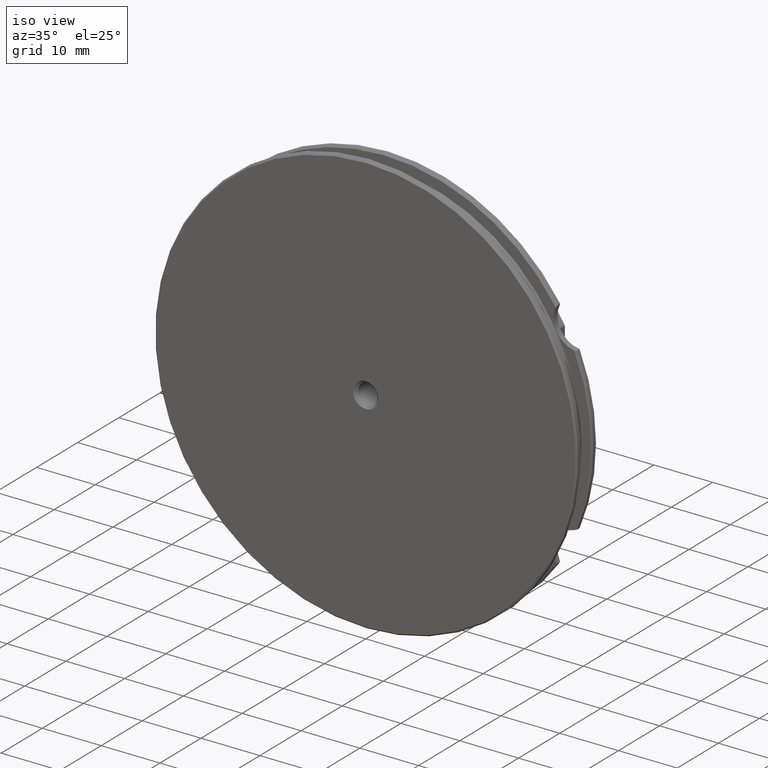
[diagram: clean part render]
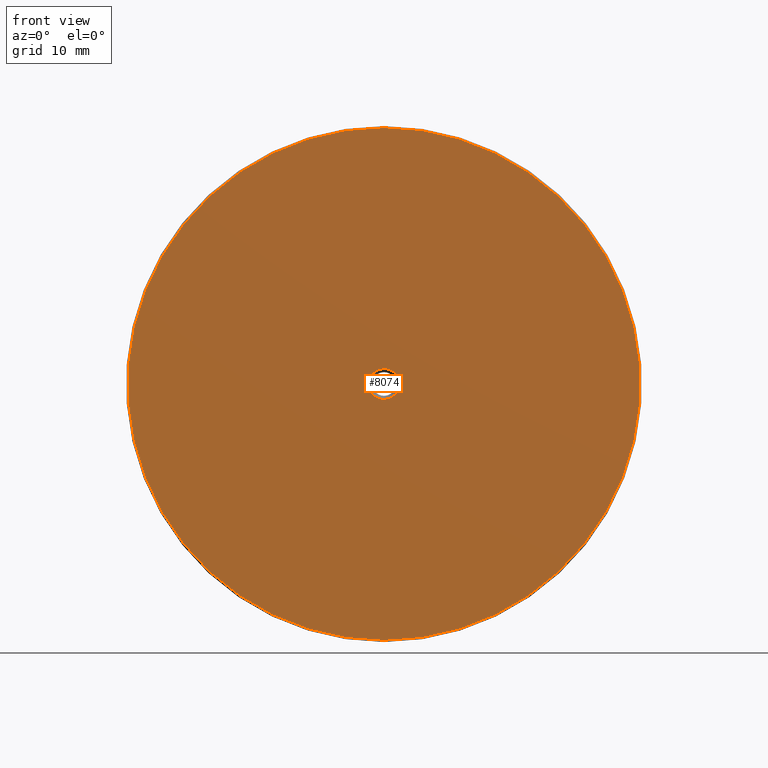
[diagram: tour spotlight — one face highlighted and labeled with its STEP entity id]
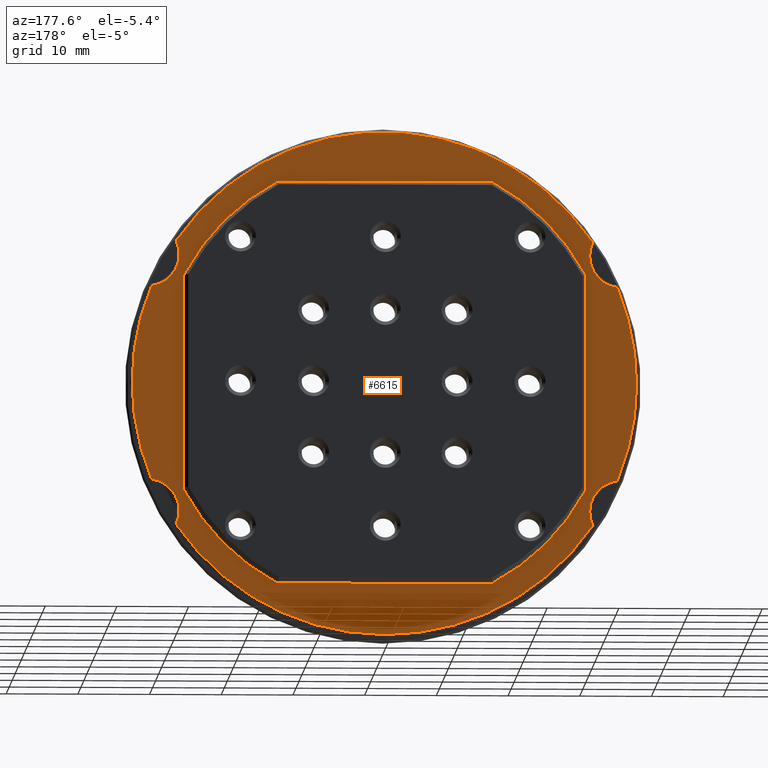
[diagram: tour spotlight — one face highlighted and labeled with its STEP entity id]
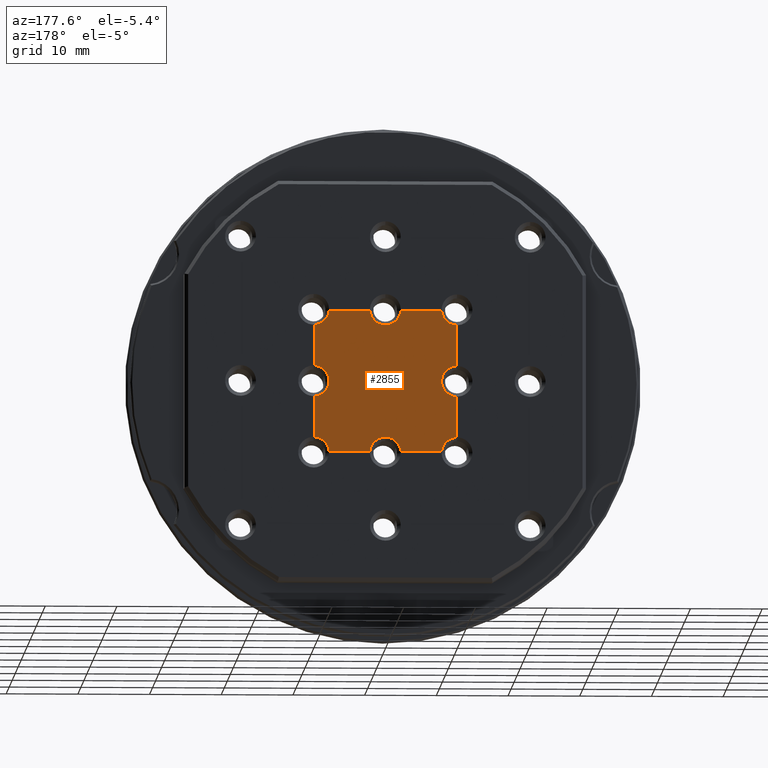
[diagram: tour spotlight — one face highlighted and labeled with its STEP entity id]
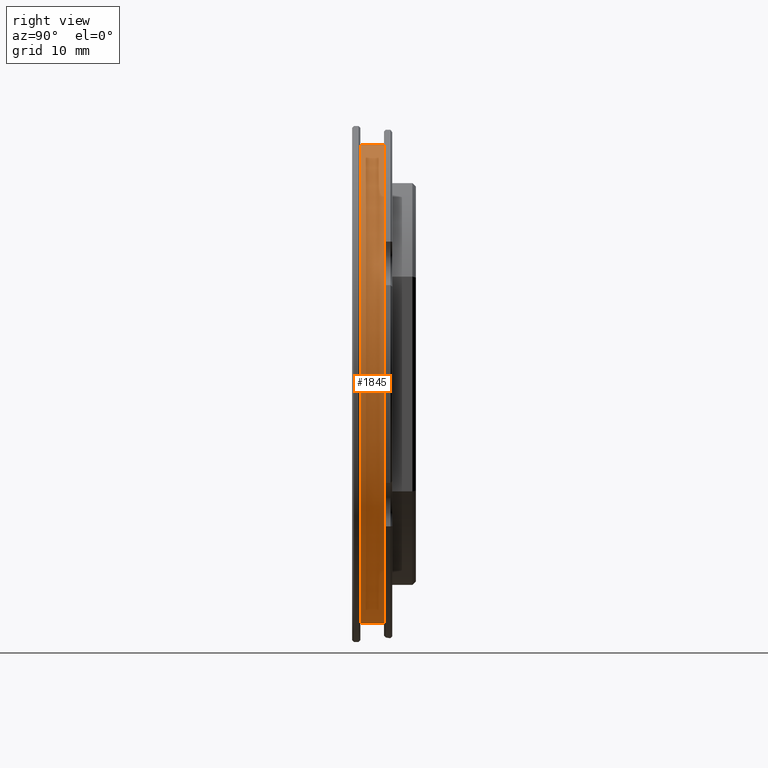
[diagram: tour spotlight — one face highlighted and labeled with its STEP entity id]
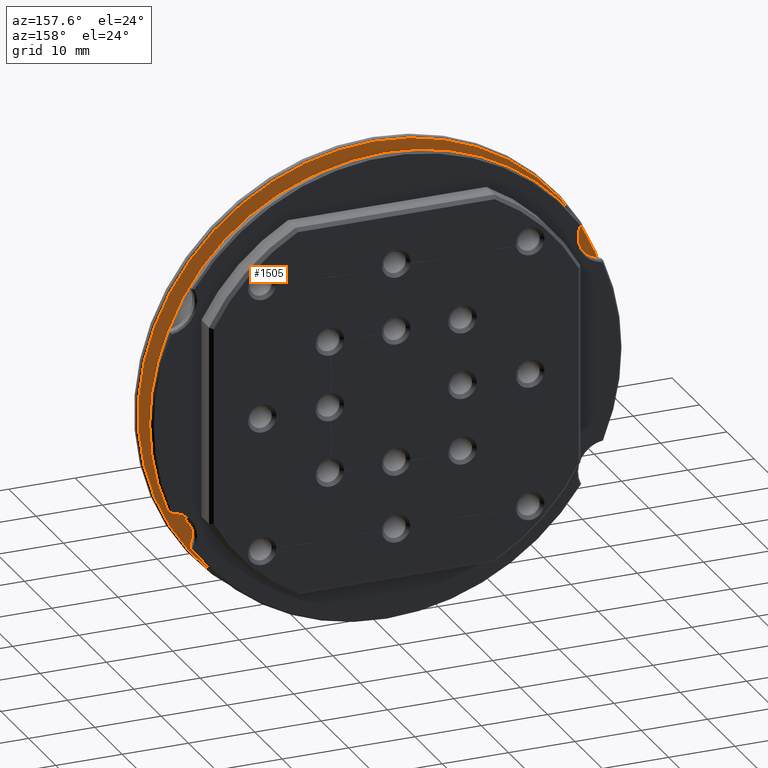
[diagram: tour spotlight — one face highlighted and labeled with its STEP entity id]
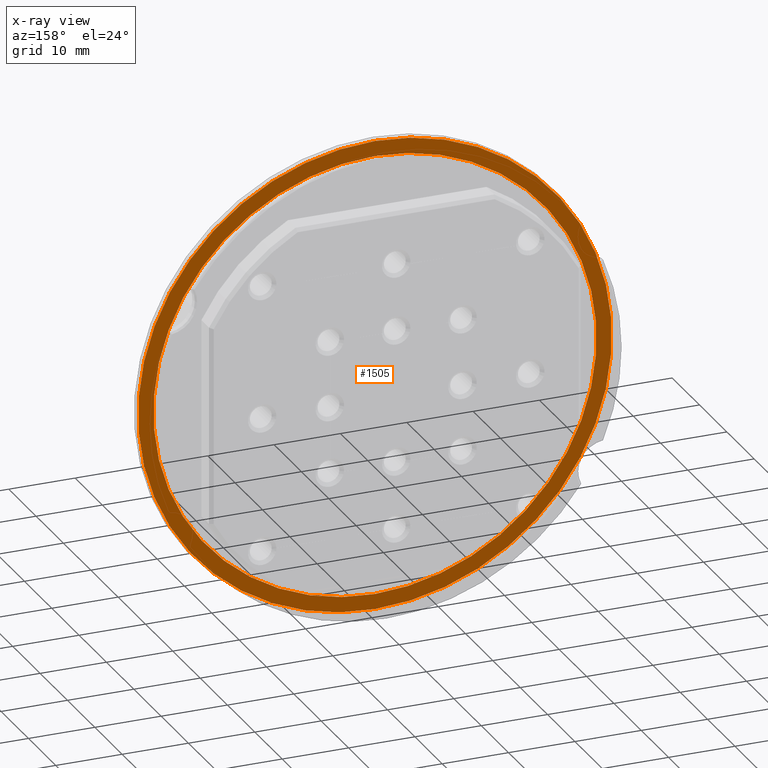
[diagram: x-ray of the same camera — body ghosted, this tour face saturated]
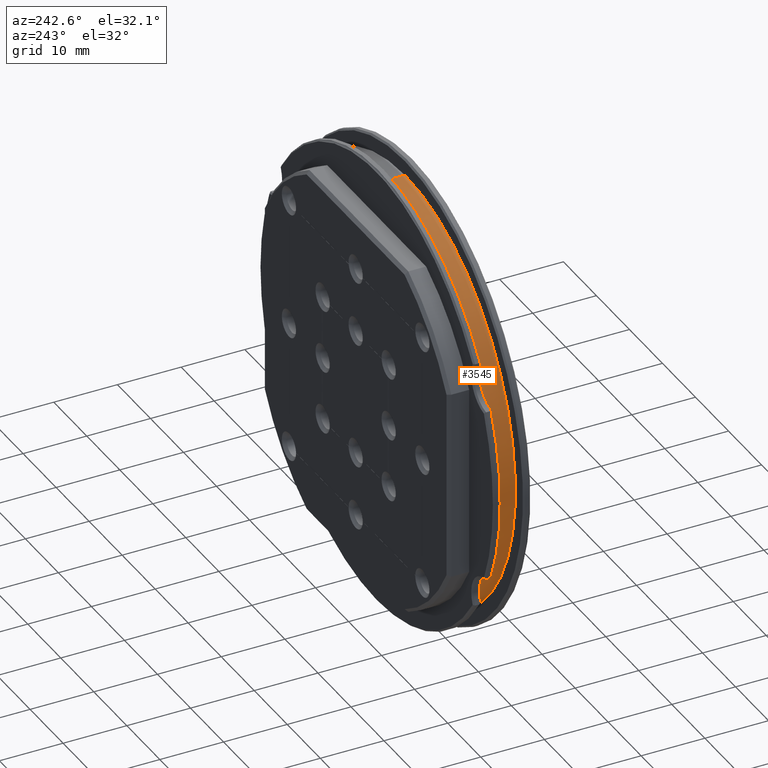
[diagram: tour spotlight — one face highlighted and labeled with its STEP entity id]
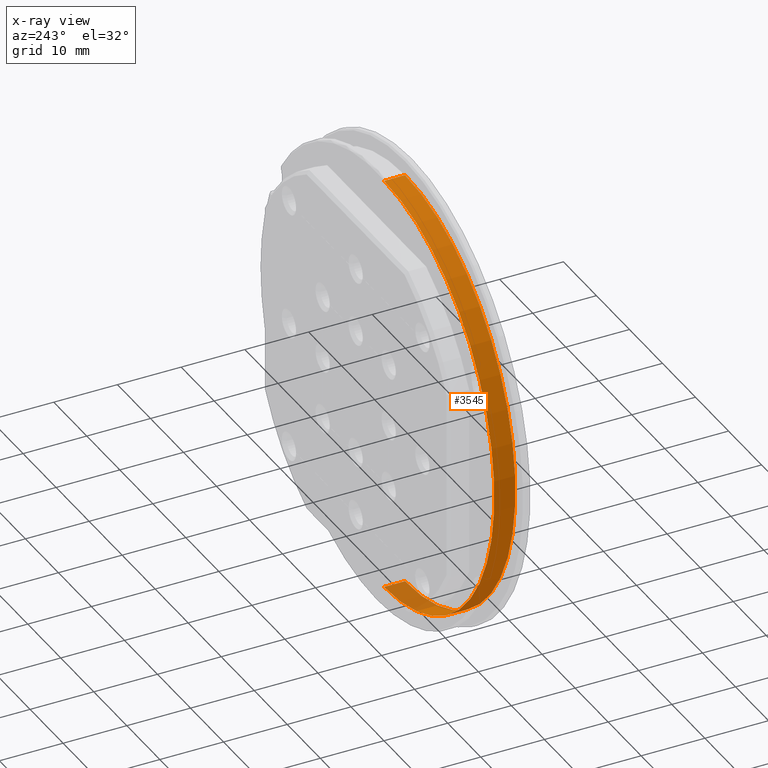
[diagram: x-ray of the same camera — body ghosted, this tour face saturated]
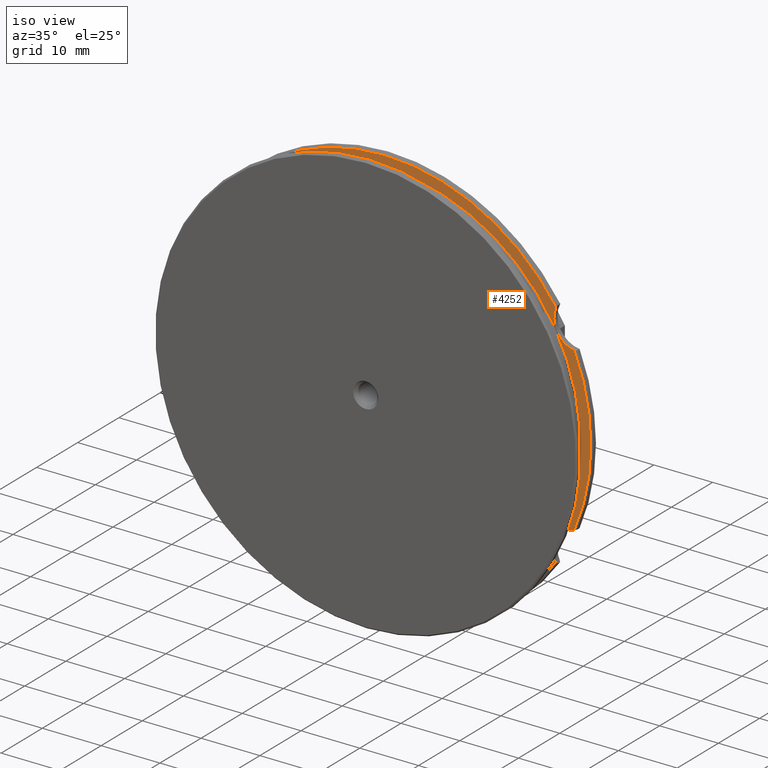
[diagram: tour spotlight — one face highlighted and labeled with its STEP entity id]
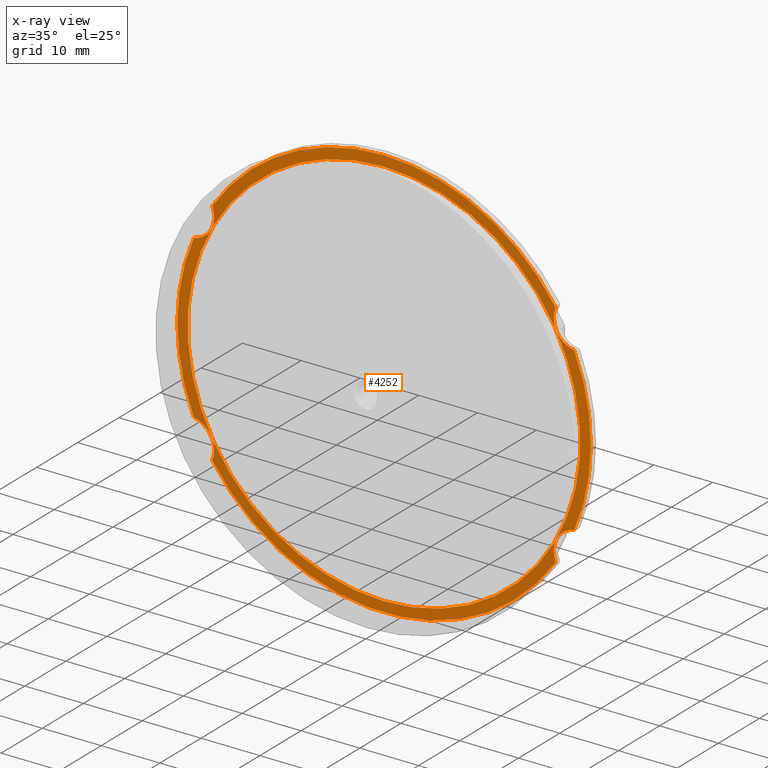
[diagram: x-ray of the same camera — body ghosted, this tour face saturated]
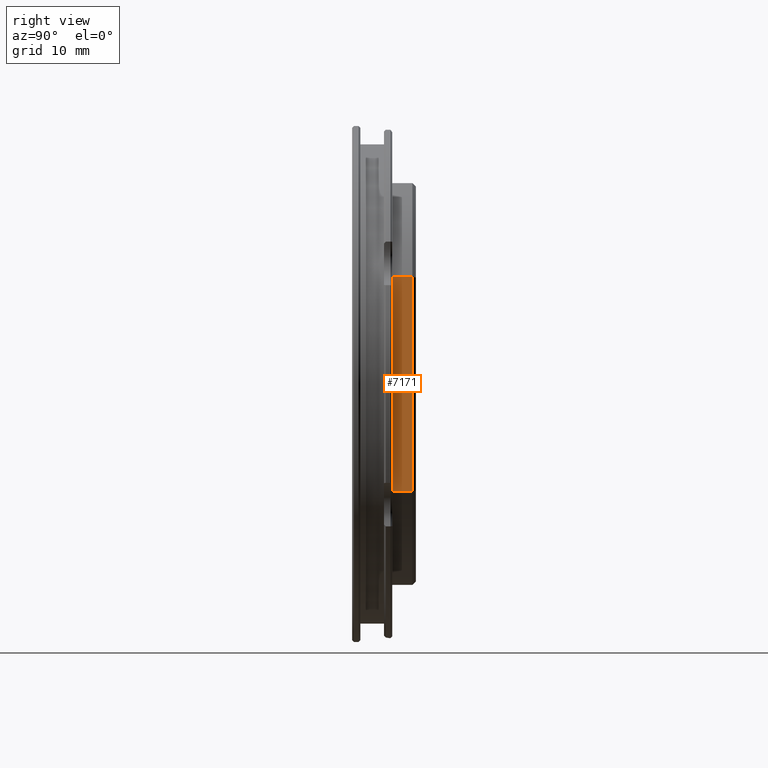
[diagram: tour spotlight — one face highlighted and labeled with its STEP entity id]
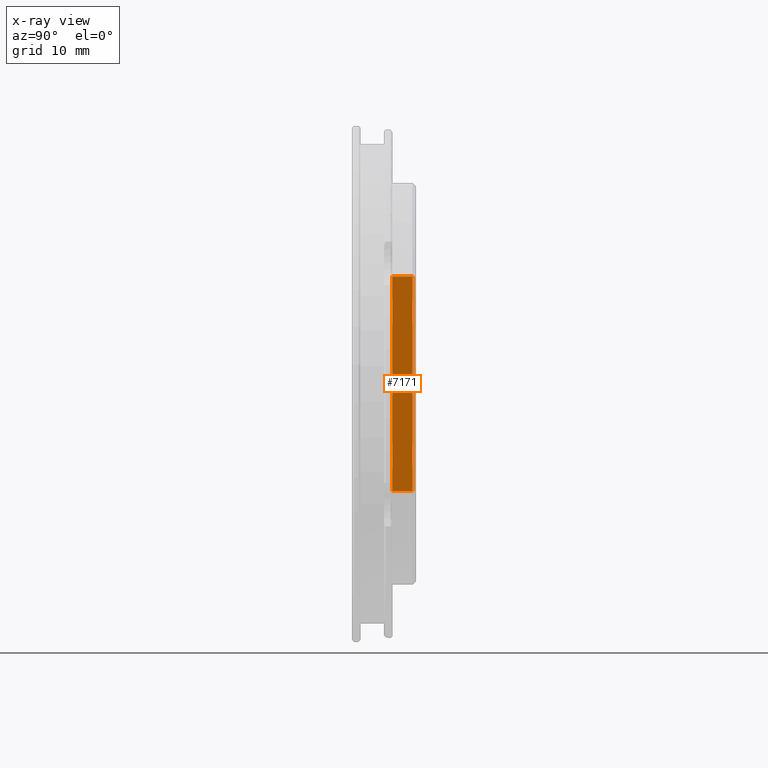
[diagram: x-ray of the same camera — body ghosted, this tour face saturated]
A machine part: a face-by-face anatomy tour. The part has 170 B-rep faces; the first image is the clean iso view, then the 8 largest visible faces are spotlighted one at a time (largest first), each with its STEP entity span.

Face 1 — front view, entity #8074. In plain terms, the highlighted planar face has unit normal (0, 1, 0).
Definition (entity closure, byte-faithful):
#121 = EDGE_CURVE ( 'NONE', #347, #5603, #5796, .T. ) ;
#295 = DIRECTION ( 'NONE',  ( 0.000000000000000000, 0.000000000000000000, -1.000000000000000000 ) ) ;
#347 = VERTEX_POINT ( 'NONE', #3080 ) ;
#484 = ORIENTED_EDGE ( 'NONE', *, *, #2888, .T. ) ;
#529 = ORIENTED_EDGE ( 'NONE', *, *, #121, .F. ) ;
#1024 = AXIS2_PLACEMENT_3D ( 'NONE', #1788, #2491, #3167 ) ;
#1518 = CARTESIAN_POINT ( 'NONE',  ( 0.000000000000000000, 0.000000000000000000, 35.69999999999999574 ) ) ;
#1524 = AXIS2_PLACEMENT_3D ( 'NONE', #7430, #2328, #6777 ) ;
#1625 = VERTEX_POINT ( 'NONE', #1518 ) ;
#1737 = CIRCLE ( 'NONE', #6123, 2.149999999999999911 ) ;
#1788 = CARTESIAN_POINT ( 'NONE',  ( 0.000000000000000000, 0.000000000000000000, 0.000000000000000000 ) ) ;
#1923 = EDGE_CURVE ( 'NONE', #7697, #1625, #5832, .T. ) ;
#2166 = PLANE ( 'NONE',  #1524 ) ;
#2328 = DIRECTION ( 'NONE',  ( 0.000000000000000000, 1.000000000000000000, 0.000000000000000000 ) ) ;
#2491 = DIRECTION ( 'NONE',  ( -0.000000000000000000, -1.000000000000000000, -0.000000000000000000 ) ) ;
#2725 = CIRCLE ( 'NONE', #1024, 35.69999999999999574 ) ;
#2888 = EDGE_CURVE ( 'NONE', #1625, #7697, #2725, .T. ) ;
#2977 = FACE_BOUND ( 'NONE', #4315, .T. ) ;
#3079 = FACE_OUTER_BOUND ( 'NONE', #4529, .T. ) ;
#3080 = CARTESIAN_POINT ( 'NONE',  ( 2.632990618166809235E-16, 0.000000000000000000, 2.149999999999999911 ) ) ;
#3167 = DIRECTION ( 'NONE',  ( 0.000000000000000000, 0.000000000000000000, 1.000000000000000000 ) ) ;
#3399 = AXIS2_PLACEMENT_3D ( 'NONE', #3812, #3873, #7685 ) ;
#3812 = CARTESIAN_POINT ( 'NONE',  ( 0.000000000000000000, 0.000000000000000000, 0.000000000000000000 ) ) ;
#3873 = DIRECTION ( 'NONE',  ( -0.000000000000000000, -1.000000000000000000, -0.000000000000000000 ) ) ;
#4315 = EDGE_LOOP ( 'NONE', ( #7285, #529 ) ) ;
#4473 = CARTESIAN_POINT ( 'NONE',  ( 0.000000000000000000, 0.000000000000000000, -2.149999999999999911 ) ) ;
#4529 = EDGE_LOOP ( 'NONE', ( #484, #7143 ) ) ;
#4641 = DIRECTION ( 'NONE',  ( -0.000000000000000000, -1.000000000000000000, -0.000000000000000000 ) ) ;
#4692 = CARTESIAN_POINT ( 'NONE',  ( 0.000000000000000000, 0.000000000000000000, 0.000000000000000000 ) ) ;
#5105 = EDGE_CURVE ( 'NONE', #5603, #347, #1737, .T. ) ;
#5281 = CARTESIAN_POINT ( 'NONE',  ( 4.387297157945392678E-15, 0.000000000000000000, -35.69999999999999574 ) ) ;
#5603 = VERTEX_POINT ( 'NONE', #4473 ) ;
#5796 = CIRCLE ( 'NONE', #6825, 2.149999999999999911 ) ;
#5832 = CIRCLE ( 'NONE', #3399, 35.69999999999999574 ) ;
#6123 = AXIS2_PLACEMENT_3D ( 'NONE', #7505, #6937, #8136 ) ;
#6777 = DIRECTION ( 'NONE',  ( 0.000000000000000000, -0.000000000000000000, 1.000000000000000000 ) ) ;
#6825 = AXIS2_PLACEMENT_3D ( 'NONE', #4692, #4641, #295 ) ;
#6937 = DIRECTION ( 'NONE',  ( -0.000000000000000000, -1.000000000000000000, -0.000000000000000000 ) ) ;
#7143 = ORIENTED_EDGE ( 'NONE', *, *, #1923, .T. ) ;
#7285 = ORIENTED_EDGE ( 'NONE', *, *, #5105, .F. ) ;
#7430 = CARTESIAN_POINT ( 'NONE',  ( 0.000000000000000000, 0.000000000000000000, 0.000000000000000000 ) ) ;
#7505 = CARTESIAN_POINT ( 'NONE',  ( 0.000000000000000000, 0.000000000000000000, 0.000000000000000000 ) ) ;
#7685 = DIRECTION ( 'NONE',  ( 0.000000000000000000, 0.000000000000000000, 1.000000000000000000 ) ) ;
#7697 = VERTEX_POINT ( 'NONE', #5281 ) ;
#8074 = ADVANCED_FACE ( 'NONE', ( #3079, #2977 ), #2166, .F. ) ;
#8136 = DIRECTION ( 'NONE',  ( 0.000000000000000000, 0.000000000000000000, -1.000000000000000000 ) ) ;

Face 2 — auxiliary view, entity #6615. In plain terms, the highlighted planar face has unit normal (-0, 1, 0).
Definition (entity closure, byte-faithful):
#27 = CIRCLE ( 'NONE', #6774, 35.17999999999999972 ) ;
#54 = DIRECTION ( 'NONE',  ( -0.000000000000000000, 1.000000000000000000, 0.000000000000000000 ) ) ;
#57 = VERTEX_POINT ( 'NONE', #4588 ) ;
#76 = ORIENTED_EDGE ( 'NONE', *, *, #2952, .T. ) ;
#153 = ORIENTED_EDGE ( 'NONE', *, *, #336, .T. ) ;
#195 = CARTESIAN_POINT ( 'NONE',  ( 28.00000000000001066, 5.599999999999994316, -14.96871737992268336 ) ) ;
#196 = VERTEX_POINT ( 'NONE', #6133 ) ;
#234 = EDGE_CURVE ( 'NONE', #7467, #5144, #4483, .T. ) ;
#262 = FACE_OUTER_BOUND ( 'NONE', #4496, .T. ) ;
#269 = CIRCLE ( 'NONE', #1539, 4.414999999999992042 ) ;
#284 = DIRECTION ( 'NONE',  ( 0.000000000000000000, -1.000000000000000000, -0.000000000000000000 ) ) ;
#302 = AXIS2_PLACEMENT_3D ( 'NONE', #7309, #6703, #3496 ) ;
#336 = EDGE_CURVE ( 'NONE', #57, #5211, #27, .T. ) ;
#432 = EDGE_CURVE ( 'NONE', #5211, #4010, #3089, .T. ) ;
#469 = CARTESIAN_POINT ( 'NONE',  ( 0.000000000000000000, 5.599999999999999645, 0.000000000000000000 ) ) ;
#517 = CARTESIAN_POINT ( 'NONE',  ( 0.000000000000000000, 5.599999999999999645, 0.000000000000000000 ) ) ;
#577 = EDGE_CURVE ( 'NONE', #6545, #731, #1306, .T. ) ;
#645 = CIRCLE ( 'NONE', #7714, 31.75000000000000000 ) ;
#718 = DIRECTION ( 'NONE',  ( 0.000000000000000000, 1.000000000000000000, 0.000000000000000000 ) ) ;
#731 = VERTEX_POINT ( 'NONE', #4200 ) ;
#736 = DIRECTION ( 'NONE',  ( 0.000000000000000000, 0.000000000000000000, 1.000000000000000000 ) ) ;
#741 = CARTESIAN_POINT ( 'NONE',  ( -14.96871737992268869, 5.599999999999999645, 28.00000000000001066 ) ) ;
#858 = DIRECTION ( 'NONE',  ( 0.000000000000000000, 0.000000000000000000, 1.000000000000000000 ) ) ;
#868 = CARTESIAN_POINT ( 'NONE',  ( -29.06538625800019204, 5.599999999999999645, -19.82008379581816016 ) ) ;
#872 = ORIENTED_EDGE ( 'NONE', *, *, #7330, .T. ) ;
#1035 = LINE ( 'NONE', #6933, #2023 ) ;
#1073 = ORIENTED_EDGE ( 'NONE', *, *, #2876, .T. ) ;
#1125 = ORIENTED_EDGE ( 'NONE', *, *, #4151, .T. ) ;
#1141 = CARTESIAN_POINT ( 'NONE',  ( 0.000000000000000000, 5.599999999999999645, 0.000000000000000000 ) ) ;
#1146 = CIRCLE ( 'NONE', #3760, 4.414999999999986713 ) ;
#1147 = VERTEX_POINT ( 'NONE', #7429 ) ;
#1165 = DIRECTION ( 'NONE',  ( 0.000000000000000000, -1.000000000000000000, -0.000000000000000000 ) ) ;
#1208 = DIRECTION ( 'NONE',  ( 0.000000000000000000, 0.000000000000000000, -1.000000000000000000 ) ) ;
#1245 = VERTEX_POINT ( 'NONE', #7459 ) ;
#1306 = CIRCLE ( 'NONE', #6526, 35.17999999999999972 ) ;
#1324 = CARTESIAN_POINT ( 'NONE',  ( 0.000000000000000000, 5.599999999999999645, -35.17999999999999972 ) ) ;
#1337 = CIRCLE ( 'NONE', #7813, 31.75000000000000000 ) ;
#1377 = ORIENTED_EDGE ( 'NONE', *, *, #1711, .T. ) ;
#1380 = DIRECTION ( 'NONE',  ( 0.000000000000000000, 0.000000000000000000, 1.000000000000000000 ) ) ;
#1381 = EDGE_CURVE ( 'NONE', #5676, #1147, #6469, .T. ) ;
#1521 = DIRECTION ( 'NONE',  ( -0.000000000000000000, 1.000000000000000000, 0.000000000000000000 ) ) ;
#1539 = AXIS2_PLACEMENT_3D ( 'NONE', #5462, #284, #7315 ) ;
#1563 = DIRECTION ( 'NONE',  ( 0.000000000000000000, -1.000000000000000000, -0.000000000000000000 ) ) ;
#1589 = CARTESIAN_POINT ( 'NONE',  ( 33.04999999999999005, 5.599999999999999645, 17.91874786362039984 ) ) ;
#1590 = DIRECTION ( 'NONE',  ( 0.000000000000000000, -1.000000000000000000, -0.000000000000000000 ) ) ;
#1711 = EDGE_CURVE ( 'NONE', #731, #196, #269, .T. ) ;
#1756 = CIRCLE ( 'NONE', #2805, 4.414999999999992042 ) ;
#1763 = ORIENTED_EDGE ( 'NONE', *, *, #577, .T. ) ;
#1781 = DIRECTION ( 'NONE',  ( 0.000000000000000000, 0.000000000000000000, 1.000000000000000000 ) ) ;
#1823 = AXIS2_PLACEMENT_3D ( 'NONE', #3285, #718, #1380 ) ;
#1932 = AXIS2_PLACEMENT_3D ( 'NONE', #5405, #3497, #4801 ) ;
#2023 = VECTOR ( 'NONE', #1208, 1000.000000000000000 ) ;
#2096 = CARTESIAN_POINT ( 'NONE',  ( 29.06538625800019560, 5.599999999999999645, 19.82008379581816371 ) ) ;
#2118 = CIRCLE ( 'NONE', #5883, 35.17999999999999972 ) ;
#2246 = ORIENTED_EDGE ( 'NONE', *, *, #3307, .F. ) ;
#2249 = CARTESIAN_POINT ( 'NONE',  ( 28.00000000000001066, 5.599999999999994316, 28.00000000000000355 ) ) ;
#2384 = ORIENTED_EDGE ( 'NONE', *, *, #4991, .T. ) ;
#2421 = AXIS2_PLACEMENT_3D ( 'NONE', #1589, #1563, #6028 ) ;
#2539 = DIRECTION ( 'NONE',  ( 0.000000000000000000, 0.000000000000000000, 1.000000000000000000 ) ) ;
#2571 = EDGE_CURVE ( 'NONE', #4845, #57, #1146, .T. ) ;
#2572 = CARTESIAN_POINT ( 'NONE',  ( -32.46911057487578489, 5.599999999999999645, -13.54212902303365595 ) ) ;
#2705 = VECTOR ( 'NONE', #5444, 1000.000000000000000 ) ;
#2805 = AXIS2_PLACEMENT_3D ( 'NONE', #3703, #1165, #6893 ) ;
#2876 = EDGE_CURVE ( 'NONE', #6563, #1147, #1035, .T. ) ;
#2885 = EDGE_CURVE ( 'NONE', #6563, #5144, #1337, .T. ) ;
#2952 = EDGE_CURVE ( 'NONE', #5316, #4845, #2118, .T. ) ;
#2981 = ORIENTED_EDGE ( 'NONE', *, *, #7074, .T. ) ;
#3015 = VERTEX_POINT ( 'NONE', #195 ) ;
#3017 = DIRECTION ( 'NONE',  ( 0.000000000000000000, -0.000000000000000000, 1.000000000000000000 ) ) ;
#3081 = VECTOR ( 'NONE', #3017, 1000.000000000000000 ) ;
#3089 = CIRCLE ( 'NONE', #5502, 35.17999999999999972 ) ;
#3153 = CARTESIAN_POINT ( 'NONE',  ( 14.96871737992269580, 5.599999999999994316, 28.00000000000000355 ) ) ;
#3198 = CARTESIAN_POINT ( 'NONE',  ( 0.000000000000000000, 5.599999999999999645, 0.000000000000000000 ) ) ;
#3268 = DIRECTION ( 'NONE',  ( 0.000000000000000000, 0.000000000000000000, 1.000000000000000000 ) ) ;
#3285 = CARTESIAN_POINT ( 'NONE',  ( 0.000000000000000000, 5.599999999999999645, 0.000000000000000000 ) ) ;
#3307 = EDGE_CURVE ( 'NONE', #3015, #1245, #4389, .T. ) ;
#3373 = CARTESIAN_POINT ( 'NONE',  ( 32.46911057487577779, 5.599999999999999645, 13.54212902303366839 ) ) ;
#3496 = DIRECTION ( 'NONE',  ( 0.000000000000000000, 0.000000000000000000, 1.000000000000000000 ) ) ;
#3497 = DIRECTION ( 'NONE',  ( -0.000000000000000000, 1.000000000000000000, 0.000000000000000000 ) ) ;
#3518 = EDGE_CURVE ( 'NONE', #4337, #5316, #7849, .T. ) ;
#3703 = CARTESIAN_POINT ( 'NONE',  ( -33.04999999999999005, 5.599999999999999645, -17.91874786362039274 ) ) ;
#3760 = AXIS2_PLACEMENT_3D ( 'NONE', #4057, #1590, #4726 ) ;
#3902 = CARTESIAN_POINT ( 'NONE',  ( -14.96871737992272422, 5.599999999999994316, -27.99999999999998934 ) ) ;
#3978 = VECTOR ( 'NONE', #5475, 1000.000000000000000 ) ;
#4010 = VERTEX_POINT ( 'NONE', #868 ) ;
#4057 = CARTESIAN_POINT ( 'NONE',  ( 33.04999999999999005, 5.599999999999999645, -17.91874786362039984 ) ) ;
#4091 = CARTESIAN_POINT ( 'NONE',  ( 0.000000000000000000, 5.599999999999999645, 0.000000000000000000 ) ) ;
#4151 = EDGE_CURVE ( 'NONE', #4010, #6545, #1756, .T. ) ;
#4195 = DIRECTION ( 'NONE',  ( 0.000000000000000000, 1.000000000000000000, 0.000000000000000000 ) ) ;
#4200 = CARTESIAN_POINT ( 'NONE',  ( -32.46911057487577779, 5.599999999999999645, 13.54212902303364707 ) ) ;
#4229 = CARTESIAN_POINT ( 'NONE',  ( 28.00000000000001066, 5.599999999999994316, 28.00000000000000355 ) ) ;
#4337 = VERTEX_POINT ( 'NONE', #2096 ) ;
#4389 = CIRCLE ( 'NONE', #1823, 31.75000000000000000 ) ;
#4483 = LINE ( 'NONE', #2249, #3978 ) ;
#4496 = EDGE_LOOP ( 'NONE', ( #1763, #1377, #2981, #6026, #76, #7705, #153, #5776, #1125 ) ) ;
#4572 = AXIS2_PLACEMENT_3D ( 'NONE', #5196, #6483, #3268 ) ;
#4588 = CARTESIAN_POINT ( 'NONE',  ( 29.06538625800020625, 5.599999999999999645, -19.82008379581817081 ) ) ;
#4726 = DIRECTION ( 'NONE',  ( 0.000000000000000000, 0.000000000000000000, 1.000000000000000000 ) ) ;
#4738 = CARTESIAN_POINT ( 'NONE',  ( 28.00000000000001066, 5.599999999999994316, -27.99999999999999645 ) ) ;
#4769 = LINE ( 'NONE', #4738, #2705 ) ;
#4801 = DIRECTION ( 'NONE',  ( 0.000000000000000000, -0.000000000000000000, 1.000000000000000000 ) ) ;
#4815 = ORIENTED_EDGE ( 'NONE', *, *, #234, .T. ) ;
#4845 = VERTEX_POINT ( 'NONE', #7059 ) ;
#4944 = DIRECTION ( 'NONE',  ( 0.000000000000000000, 1.000000000000000000, 0.000000000000000000 ) ) ;
#4991 = EDGE_CURVE ( 'NONE', #3015, #5963, #5585, .T. ) ;
#5144 = VERTEX_POINT ( 'NONE', #741 ) ;
#5196 = CARTESIAN_POINT ( 'NONE',  ( 0.000000000000000000, 5.599999999999999645, 0.000000000000000000 ) ) ;
#5211 = VERTEX_POINT ( 'NONE', #1324 ) ;
#5316 = VERTEX_POINT ( 'NONE', #3373 ) ;
#5358 = CARTESIAN_POINT ( 'NONE',  ( -27.99999999999998934, 5.599999999999994316, 14.96871737992272422 ) ) ;
#5405 = CARTESIAN_POINT ( 'NONE',  ( 0.000000000000000000, 5.599999999999999645, 0.000000000000000000 ) ) ;
#5444 = DIRECTION ( 'NONE',  ( 1.000000000000000000, 0.000000000000000000, -1.239088197126290817E-16 ) ) ;
#5462 = CARTESIAN_POINT ( 'NONE',  ( -33.04999999999999005, 5.599999999999999645, 17.91874786362039274 ) ) ;
#5475 = DIRECTION ( 'NONE',  ( -1.000000000000000000, -0.000000000000000000, 1.239088197126290817E-16 ) ) ;
#5502 = AXIS2_PLACEMENT_3D ( 'NONE', #6488, #6543, #5933 ) ;
#5585 = LINE ( 'NONE', #4229, #3081 ) ;
#5595 = DIRECTION ( 'NONE',  ( -0.000000000000000000, 1.000000000000000000, 0.000000000000000000 ) ) ;
#5676 = VERTEX_POINT ( 'NONE', #3902 ) ;
#5776 = ORIENTED_EDGE ( 'NONE', *, *, #432, .T. ) ;
#5883 = AXIS2_PLACEMENT_3D ( 'NONE', #3198, #54, #736 ) ;
#5933 = DIRECTION ( 'NONE',  ( 0.000000000000000000, 0.000000000000000000, 1.000000000000000000 ) ) ;
#5963 = VERTEX_POINT ( 'NONE', #7484 ) ;
#6026 = ORIENTED_EDGE ( 'NONE', *, *, #3518, .T. ) ;
#6028 = DIRECTION ( 'NONE',  ( 0.000000000000000000, 0.000000000000000000, 1.000000000000000000 ) ) ;
#6133 = CARTESIAN_POINT ( 'NONE',  ( -29.06538625800019204, 5.599999999999999645, 19.82008379581816371 ) ) ;
#6252 = EDGE_CURVE ( 'NONE', #7467, #5963, #645, .T. ) ;
#6469 = CIRCLE ( 'NONE', #4572, 31.75000000000000000 ) ;
#6483 = DIRECTION ( 'NONE',  ( 0.000000000000000000, 1.000000000000000000, 0.000000000000000000 ) ) ;
#6488 = CARTESIAN_POINT ( 'NONE',  ( 0.000000000000000000, 5.599999999999999645, 0.000000000000000000 ) ) ;
#6526 = AXIS2_PLACEMENT_3D ( 'NONE', #4091, #1521, #858 ) ;
#6543 = DIRECTION ( 'NONE',  ( -0.000000000000000000, 1.000000000000000000, 0.000000000000000000 ) ) ;
#6545 = VERTEX_POINT ( 'NONE', #2572 ) ;
#6563 = VERTEX_POINT ( 'NONE', #5358 ) ;
#6615 = ADVANCED_FACE ( 'NONE', ( #262, #6815 ), #7254, .T. ) ;
#6703 = DIRECTION ( 'NONE',  ( -0.000000000000000000, 1.000000000000000000, 0.000000000000000000 ) ) ;
#6759 = ORIENTED_EDGE ( 'NONE', *, *, #2885, .F. ) ;
#6767 = DIRECTION ( 'NONE',  ( 0.000000000000000000, 0.000000000000000000, 1.000000000000000000 ) ) ;
#6774 = AXIS2_PLACEMENT_3D ( 'NONE', #1141, #5595, #1781 ) ;
#6815 = FACE_BOUND ( 'NONE', #6826, .T. ) ;
#6826 = EDGE_LOOP ( 'NONE', ( #6925, #4815, #6759, #1073, #7763, #872, #2246, #2384 ) ) ;
#6893 = DIRECTION ( 'NONE',  ( 0.000000000000000000, 0.000000000000000000, 1.000000000000000000 ) ) ;
#6925 = ORIENTED_EDGE ( 'NONE', *, *, #6252, .F. ) ;
#6933 = CARTESIAN_POINT ( 'NONE',  ( -27.99999999999998934, 5.599999999999994316, 28.00000000000001066 ) ) ;
#7059 = CARTESIAN_POINT ( 'NONE',  ( 32.46911057487577068, 5.599999999999999645, -13.54212902303366128 ) ) ;
#7074 = EDGE_CURVE ( 'NONE', #196, #4337, #7805, .T. ) ;
#7254 = PLANE ( 'NONE',  #1932 ) ;
#7309 = CARTESIAN_POINT ( 'NONE',  ( 0.000000000000000000, 5.599999999999999645, 0.000000000000000000 ) ) ;
#7315 = DIRECTION ( 'NONE',  ( 0.000000000000000000, 0.000000000000000000, 1.000000000000000000 ) ) ;
#7330 = EDGE_CURVE ( 'NONE', #5676, #1245, #4769, .T. ) ;
#7429 = CARTESIAN_POINT ( 'NONE',  ( -27.99999999999998934, 5.599999999999999645, -14.96871737992272422 ) ) ;
#7459 = CARTESIAN_POINT ( 'NONE',  ( 14.96871737992271356, 5.599999999999999645, -27.99999999999999645 ) ) ;
#7467 = VERTEX_POINT ( 'NONE', #3153 ) ;
#7484 = CARTESIAN_POINT ( 'NONE',  ( 28.00000000000001066, 5.599999999999999645, 14.96871737992268514 ) ) ;
#7705 = ORIENTED_EDGE ( 'NONE', *, *, #2571, .T. ) ;
#7714 = AXIS2_PLACEMENT_3D ( 'NONE', #469, #4195, #6767 ) ;
#7763 = ORIENTED_EDGE ( 'NONE', *, *, #1381, .F. ) ;
#7805 = CIRCLE ( 'NONE', #302, 35.17999999999999972 ) ;
#7813 = AXIS2_PLACEMENT_3D ( 'NONE', #517, #4944, #2539 ) ;
#7849 = CIRCLE ( 'NONE', #2421, 4.414999999999984936 ) ;

Face 3 — auxiliary view, entity #2855. In plain terms, the highlighted planar face has unit normal (0, 1, 0).
Definition (entity closure, byte-faithful):
#233 = LINE ( 'NONE', #2969, #428 ) ;
#320 = VECTOR ( 'NONE', #8115, 1000.000000000000000 ) ;
#327 = VERTEX_POINT ( 'NONE', #6286 ) ;
#334 = EDGE_CURVE ( 'NONE', #4286, #1054, #5287, .T. ) ;
#428 = VECTOR ( 'NONE', #4178, 1000.000000000000000 ) ;
#433 = DIRECTION ( 'NONE',  ( -0.000000000000000000, 1.000000000000000000, -0.000000000000000000 ) ) ;
#443 = AXIS2_PLACEMENT_3D ( 'NONE', #2513, #4422, #6874 ) ;
#444 = CARTESIAN_POINT ( 'NONE',  ( 9.849999999999997868, 8.900000000000000355, -9.849999999999997868 ) ) ;
#651 = EDGE_CURVE ( 'NONE', #5664, #7125, #2386, .T. ) ;
#729 = VECTOR ( 'NONE', #2953, 1000.000000000000000 ) ;
#894 = CIRCLE ( 'NONE', #4743, 2.149999999999999023 ) ;
#936 = FACE_OUTER_BOUND ( 'NONE', #1442, .T. ) ;
#942 = CIRCLE ( 'NONE', #4191, 2.149999999999999023 ) ;
#968 = VERTEX_POINT ( 'NONE', #5102 ) ;
#1031 = ORIENTED_EDGE ( 'NONE', *, *, #3255, .T. ) ;
#1037 = VERTEX_POINT ( 'NONE', #2575 ) ;
#1054 = VERTEX_POINT ( 'NONE', #2662 ) ;
#1153 = AXIS2_PLACEMENT_3D ( 'NONE', #1384, #3839, #4489 ) ;
#1220 = EDGE_CURVE ( 'NONE', #2170, #2863, #6958, .T. ) ;
#1255 = CARTESIAN_POINT ( 'NONE',  ( -9.850000000000001421, 8.900000000000000355, -2.144761058952734611 ) ) ;
#1361 = CARTESIAN_POINT ( 'NONE',  ( -9.849999999999999645, 8.900000000000000355, 9.850000000000001421 ) ) ;
#1384 = CARTESIAN_POINT ( 'NONE',  ( -10.00000000000000178, 8.900000000000000355, -1.387778780781445676E-14 ) ) ;
#1388 = ORIENTED_EDGE ( 'NONE', *, *, #5480, .F. ) ;
#1442 = EDGE_LOOP ( 'NONE', ( #1388, #5251, #1875, #1031, #6007, #6168, #4467, #1890, #3148, #1955, #4919, #5519, #2410, #5632, #3585, #6418, #3235, #1917 ) ) ;
#1690 = DIRECTION ( 'NONE',  ( 0.000000000000000000, 0.000000000000000000, 1.000000000000000000 ) ) ;
#1718 = DIRECTION ( 'NONE',  ( 0.000000000000000000, 0.000000000000000000, 1.000000000000000000 ) ) ;
#1730 = CIRCLE ( 'NONE', #6823, 2.149999999999999023 ) ;
#1749 = DIRECTION ( 'NONE',  ( -0.000000000000000000, 1.000000000000000000, -0.000000000000000000 ) ) ;
#1758 = DIRECTION ( 'NONE',  ( -0.000000000000000000, 1.000000000000000000, -0.000000000000000000 ) ) ;
#1778 = CARTESIAN_POINT ( 'NONE',  ( -9.850000000000001421, 8.900000000000000355, -9.849999999999997868 ) ) ;
#1868 = PLANE ( 'NONE',  #443 ) ;
#1875 = ORIENTED_EDGE ( 'NONE', *, *, #7544, .F. ) ;
#1890 = ORIENTED_EDGE ( 'NONE', *, *, #3707, .F. ) ;
#1917 = ORIENTED_EDGE ( 'NONE', *, *, #4831, .T. ) ;
#1955 = ORIENTED_EDGE ( 'NONE', *, *, #4152, .F. ) ;
#2092 = EDGE_CURVE ( 'NONE', #1037, #8030, #5455, .T. ) ;
#2170 = VERTEX_POINT ( 'NONE', #3404 ) ;
#2339 = CARTESIAN_POINT ( 'NONE',  ( -9.999999999999998224, 8.900000000000000355, -9.999999999999998224 ) ) ;
#2377 = DIRECTION ( 'NONE',  ( 0.000000000000000000, 0.000000000000000000, 1.000000000000000000 ) ) ;
#2386 = LINE ( 'NONE', #444, #7441 ) ;
#2390 = DIRECTION ( 'NONE',  ( -0.000000000000000000, 1.000000000000000000, -0.000000000000000000 ) ) ;
#2410 = ORIENTED_EDGE ( 'NONE', *, *, #651, .T. ) ;
#2504 = LINE ( 'NONE', #1778, #320 ) ;
#2513 = CARTESIAN_POINT ( 'NONE',  ( 0.000000000000000000, 8.900000000000000355, 0.000000000000000000 ) ) ;
#2559 = CIRCLE ( 'NONE', #2961, 2.150000000000000799 ) ;
#2575 = CARTESIAN_POINT ( 'NONE',  ( 4.643338886399778886E-15, 8.900000000000000355, -7.849999999999999645 ) ) ;
#2601 = EDGE_CURVE ( 'NONE', #4192, #1037, #942, .T. ) ;
#2641 = LINE ( 'NONE', #5101, #7386 ) ;
#2662 = CARTESIAN_POINT ( 'NONE',  ( -9.849999999999999645, 8.900000000000000355, 7.855238941047277379 ) ) ;
#2717 = DIRECTION ( 'NONE',  ( 1.000000000000000000, 0.000000000000000000, 0.000000000000000000 ) ) ;
#2795 = EDGE_CURVE ( 'NONE', #5664, #6412, #1730, .T. ) ;
#2796 = CIRCLE ( 'NONE', #5806, 2.149999999999999023 ) ;
#2855 = ADVANCED_FACE ( 'NONE', ( #936 ), #1868, .T. ) ;
#2863 = VERTEX_POINT ( 'NONE', #6955 ) ;
#2919 = VECTOR ( 'NONE', #2717, 1000.000000000000000 ) ;
#2953 = DIRECTION ( 'NONE',  ( -8.805702923740138355E-17, -0.000000000000000000, -1.000000000000000000 ) ) ;
#2961 = AXIS2_PLACEMENT_3D ( 'NONE', #6184, #5624, #1718 ) ;
#2969 = CARTESIAN_POINT ( 'NONE',  ( -9.850000000000001421, 8.900000000000000355, -9.849999999999997868 ) ) ;
#3056 = VERTEX_POINT ( 'NONE', #4672 ) ;
#3148 = ORIENTED_EDGE ( 'NONE', *, *, #4307, .T. ) ;
#3193 = LINE ( 'NONE', #3260, #6594 ) ;
#3197 = EDGE_CURVE ( 'NONE', #5230, #6412, #5808, .T. ) ;
#3235 = ORIENTED_EDGE ( 'NONE', *, *, #2601, .F. ) ;
#3241 = AXIS2_PLACEMENT_3D ( 'NONE', #4730, #5309, #7265 ) ;
#3255 = EDGE_CURVE ( 'NONE', #327, #1054, #3193, .T. ) ;
#3260 = CARTESIAN_POINT ( 'NONE',  ( -9.850000000000001421, 8.900000000000000355, -9.849999999999997868 ) ) ;
#3275 = CARTESIAN_POINT ( 'NONE',  ( 9.849999999999997868, 8.900000000000000355, -2.144761058952720401 ) ) ;
#3404 = CARTESIAN_POINT ( 'NONE',  ( 4.906637948216459613E-15, 8.900000000000000355, 7.849999999999999645 ) ) ;
#3494 = CIRCLE ( 'NONE', #7328, 2.149999999999999023 ) ;
#3512 = AXIS2_PLACEMENT_3D ( 'NONE', #7540, #1749, #3736 ) ;
#3534 = DIRECTION ( 'NONE',  ( -8.805702923740138355E-17, -0.000000000000000000, -1.000000000000000000 ) ) ;
#3585 = ORIENTED_EDGE ( 'NONE', *, *, #7282, .T. ) ;
#3646 = DIRECTION ( 'NONE',  ( 8.805702923740138355E-17, 0.000000000000000000, 1.000000000000000000 ) ) ;
#3707 = EDGE_CURVE ( 'NONE', #4526, #2170, #894, .T. ) ;
#3736 = DIRECTION ( 'NONE',  ( 0.000000000000000000, 0.000000000000000000, 1.000000000000000000 ) ) ;
#3821 = CARTESIAN_POINT ( 'NONE',  ( 4.643338886399778886E-15, 8.900000000000000355, 9.999999999999998224 ) ) ;
#3839 = DIRECTION ( 'NONE',  ( -0.000000000000000000, 1.000000000000000000, -0.000000000000000000 ) ) ;
#3886 = CARTESIAN_POINT ( 'NONE',  ( 9.849999999999999645, 8.900000000000000355, 7.855238941047279155 ) ) ;
#4152 = EDGE_CURVE ( 'NONE', #5230, #4808, #2559, .T. ) ;
#4178 = DIRECTION ( 'NONE',  ( -1.000000000000000000, -0.000000000000000000, -0.000000000000000000 ) ) ;
#4184 = EDGE_CURVE ( 'NONE', #968, #8209, #4925, .T. ) ;
#4191 = AXIS2_PLACEMENT_3D ( 'NONE', #5975, #5332, #5407 ) ;
#4192 = VERTEX_POINT ( 'NONE', #7462 ) ;
#4286 = VERTEX_POINT ( 'NONE', #5816 ) ;
#4289 = CARTESIAN_POINT ( 'NONE',  ( 10.00000000000000178, 8.900000000000000355, -10.00000000000000000 ) ) ;
#4307 = EDGE_CURVE ( 'NONE', #4526, #4808, #6692, .T. ) ;
#4422 = DIRECTION ( 'NONE',  ( 0.000000000000000000, 1.000000000000000000, 0.000000000000000000 ) ) ;
#4467 = ORIENTED_EDGE ( 'NONE', *, *, #1220, .F. ) ;
#4489 = DIRECTION ( 'NONE',  ( 0.000000000000000000, 0.000000000000000000, 1.000000000000000000 ) ) ;
#4526 = VERTEX_POINT ( 'NONE', #6084 ) ;
#4672 = CARTESIAN_POINT ( 'NONE',  ( -7.855238941047279155, 8.900000000000000355, -9.849999999999997868 ) ) ;
#4730 = CARTESIAN_POINT ( 'NONE',  ( 4.643338886399778886E-15, 8.900000000000000355, -9.999999999999998224 ) ) ;
#4739 = CARTESIAN_POINT ( 'NONE',  ( 2.144761058952727062, 8.900000000000000355, -9.849999999999997868 ) ) ;
#4743 = AXIS2_PLACEMENT_3D ( 'NONE', #3821, #7526, #7577 ) ;
#4749 = CARTESIAN_POINT ( 'NONE',  ( 9.849999999999997868, 8.900000000000000355, -7.855238941047279155 ) ) ;
#4808 = VERTEX_POINT ( 'NONE', #4933 ) ;
#4831 = EDGE_CURVE ( 'NONE', #4192, #3056, #2504, .T. ) ;
#4864 = CIRCLE ( 'NONE', #1153, 2.149999999999999023 ) ;
#4919 = ORIENTED_EDGE ( 'NONE', *, *, #3197, .T. ) ;
#4925 = LINE ( 'NONE', #6835, #6556 ) ;
#4933 = CARTESIAN_POINT ( 'NONE',  ( 7.855238941047280932, 8.900000000000000355, 9.850000000000001421 ) ) ;
#5101 = CARTESIAN_POINT ( 'NONE',  ( -9.849999999999999645, 8.900000000000000355, 9.850000000000001421 ) ) ;
#5102 = CARTESIAN_POINT ( 'NONE',  ( -9.850000000000001421, 8.900000000000000355, -7.855238941047277379 ) ) ;
#5230 = VERTEX_POINT ( 'NONE', #3886 ) ;
#5231 = EDGE_CURVE ( 'NONE', #4286, #2863, #2641, .T. ) ;
#5251 = ORIENTED_EDGE ( 'NONE', *, *, #4184, .T. ) ;
#5287 = CIRCLE ( 'NONE', #3512, 2.149999999999999023 ) ;
#5309 = DIRECTION ( 'NONE',  ( -0.000000000000000000, 1.000000000000000000, -0.000000000000000000 ) ) ;
#5332 = DIRECTION ( 'NONE',  ( -0.000000000000000000, 1.000000000000000000, -0.000000000000000000 ) ) ;
#5407 = DIRECTION ( 'NONE',  ( 0.000000000000000000, 0.000000000000000000, 1.000000000000000000 ) ) ;
#5455 = CIRCLE ( 'NONE', #3241, 2.149999999999999023 ) ;
#5472 = CARTESIAN_POINT ( 'NONE',  ( 4.643338886399778886E-15, 8.900000000000000355, 9.999999999999998224 ) ) ;
#5480 = EDGE_CURVE ( 'NONE', #968, #3056, #3494, .T. ) ;
#5519 = ORIENTED_EDGE ( 'NONE', *, *, #2795, .F. ) ;
#5624 = DIRECTION ( 'NONE',  ( -0.000000000000000000, 1.000000000000000000, -0.000000000000000000 ) ) ;
#5632 = ORIENTED_EDGE ( 'NONE', *, *, #8132, .F. ) ;
#5664 = VERTEX_POINT ( 'NONE', #3275 ) ;
#5806 = AXIS2_PLACEMENT_3D ( 'NONE', #4289, #8035, #6833 ) ;
#5808 = LINE ( 'NONE', #6649, #729 ) ;
#5816 = CARTESIAN_POINT ( 'NONE',  ( -7.855238941047277379, 8.900000000000000355, 9.850000000000001421 ) ) ;
#5975 = CARTESIAN_POINT ( 'NONE',  ( 4.643338886399778886E-15, 8.900000000000000355, -9.999999999999998224 ) ) ;
#6007 = ORIENTED_EDGE ( 'NONE', *, *, #334, .F. ) ;
#6025 = AXIS2_PLACEMENT_3D ( 'NONE', #5472, #2390, #1690 ) ;
#6084 = CARTESIAN_POINT ( 'NONE',  ( 2.144761058952727062, 8.900000000000000355, 9.850000000000001421 ) ) ;
#6141 = VERTEX_POINT ( 'NONE', #7650 ) ;
#6168 = ORIENTED_EDGE ( 'NONE', *, *, #5231, .T. ) ;
#6184 = CARTESIAN_POINT ( 'NONE',  ( 10.00000000000000355, 8.900000000000000355, 10.00000000000000000 ) ) ;
#6286 = CARTESIAN_POINT ( 'NONE',  ( -9.850000000000001421, 8.900000000000000355, 2.144761058952707078 ) ) ;
#6297 = CARTESIAN_POINT ( 'NONE',  ( 9.849999999999997868, 8.900000000000000355, 2.144761058952720401 ) ) ;
#6387 = DIRECTION ( 'NONE',  ( 8.805702923740138355E-17, 0.000000000000000000, 1.000000000000000000 ) ) ;
#6412 = VERTEX_POINT ( 'NONE', #6297 ) ;
#6418 = ORIENTED_EDGE ( 'NONE', *, *, #2092, .F. ) ;
#6556 = VECTOR ( 'NONE', #3646, 1000.000000000000000 ) ;
#6594 = VECTOR ( 'NONE', #6387, 1000.000000000000000 ) ;
#6649 = CARTESIAN_POINT ( 'NONE',  ( 9.849999999999997868, 8.900000000000000355, -9.849999999999997868 ) ) ;
#6692 = LINE ( 'NONE', #1361, #2919 ) ;
#6823 = AXIS2_PLACEMENT_3D ( 'NONE', #8072, #1758, #2377 ) ;
#6833 = DIRECTION ( 'NONE',  ( 0.000000000000000000, 0.000000000000000000, 1.000000000000000000 ) ) ;
#6835 = CARTESIAN_POINT ( 'NONE',  ( -9.850000000000001421, 8.900000000000000355, -9.849999999999997868 ) ) ;
#6874 = DIRECTION ( 'NONE',  ( 0.000000000000000000, -0.000000000000000000, 1.000000000000000000 ) ) ;
#6955 = CARTESIAN_POINT ( 'NONE',  ( -2.144761058952716848, 8.900000000000000355, 9.850000000000001421 ) ) ;
#6958 = CIRCLE ( 'NONE', #6025, 2.149999999999999023 ) ;
#7125 = VERTEX_POINT ( 'NONE', #4749 ) ;
#7265 = DIRECTION ( 'NONE',  ( 0.000000000000000000, 0.000000000000000000, 1.000000000000000000 ) ) ;
#7282 = EDGE_CURVE ( 'NONE', #6141, #8030, #233, .T. ) ;
#7328 = AXIS2_PLACEMENT_3D ( 'NONE', #2339, #433, #7411 ) ;
#7386 = VECTOR ( 'NONE', #7672, 1000.000000000000000 ) ;
#7411 = DIRECTION ( 'NONE',  ( 0.000000000000000000, 0.000000000000000000, 1.000000000000000000 ) ) ;
#7441 = VECTOR ( 'NONE', #3534, 1000.000000000000000 ) ;
#7462 = CARTESIAN_POINT ( 'NONE',  ( -2.144761058952716404, 8.900000000000000355, -9.849999999999997868 ) ) ;
#7526 = DIRECTION ( 'NONE',  ( -0.000000000000000000, 1.000000000000000000, -0.000000000000000000 ) ) ;
#7540 = CARTESIAN_POINT ( 'NONE',  ( -9.999999999999998224, 8.900000000000000355, 9.999999999999998224 ) ) ;
#7544 = EDGE_CURVE ( 'NONE', #327, #8209, #4864, .T. ) ;
#7577 = DIRECTION ( 'NONE',  ( 0.000000000000000000, 0.000000000000000000, 1.000000000000000000 ) ) ;
#7650 = CARTESIAN_POINT ( 'NONE',  ( 7.855238941047282708, 8.900000000000000355, -9.849999999999997868 ) ) ;
#7672 = DIRECTION ( 'NONE',  ( 1.000000000000000000, 0.000000000000000000, 0.000000000000000000 ) ) ;
#8030 = VERTEX_POINT ( 'NONE', #4739 ) ;
#8035 = DIRECTION ( 'NONE',  ( -0.000000000000000000, 1.000000000000000000, -0.000000000000000000 ) ) ;
#8072 = CARTESIAN_POINT ( 'NONE',  ( 10.00000000000000178, 8.900000000000000355, 0.000000000000000000 ) ) ;
#8115 = DIRECTION ( 'NONE',  ( -1.000000000000000000, -0.000000000000000000, -0.000000000000000000 ) ) ;
#8132 = EDGE_CURVE ( 'NONE', #6141, #7125, #2796, .T. ) ;
#8209 = VERTEX_POINT ( 'NONE', #1255 ) ;

Face 4 — right view, entity #1845. In plain terms, the highlighted cylindrical surface (partial cylindrical patch) has radius 33.4 mm, axis along (-0, -1, -0).
Definition (entity closure, byte-faithful):
#50 = CARTESIAN_POINT ( 'NONE',  ( 4.090320309152159628E-15, 4.450000000000000178, 33.39999999999999858 ) ) ;
#56 = AXIS2_PLACEMENT_3D ( 'NONE', #6240, #3709, #1808 ) ;
#259 = DIRECTION ( 'NONE',  ( -0.000000000000000000, -1.000000000000000000, -0.000000000000000000 ) ) ;
#546 = EDGE_CURVE ( 'NONE', #6238, #1368, #905, .T. ) ;
#905 = LINE ( 'NONE', #2212, #3769 ) ;
#1117 = AXIS2_PLACEMENT_3D ( 'NONE', #8001, #4197, #3664 ) ;
#1368 = VERTEX_POINT ( 'NONE', #5652 ) ;
#1547 = ORIENTED_EDGE ( 'NONE', *, *, #546, .F. ) ;
#1808 = DIRECTION ( 'NONE',  ( 0.000000000000000000, 0.000000000000000000, -1.000000000000000000 ) ) ;
#1845 = ADVANCED_FACE ( 'NONE', ( #7989 ), #2530, .T. ) ;
#2212 = CARTESIAN_POINT ( 'NONE',  ( 0.000000000000000000, 0.000000000000000000, -33.39999999999999858 ) ) ;
#2400 = DIRECTION ( 'NONE',  ( -0.000000000000000000, -1.000000000000000000, -0.000000000000000000 ) ) ;
#2429 = DIRECTION ( 'NONE',  ( 0.000000000000000000, 0.000000000000000000, -1.000000000000000000 ) ) ;
#2530 = CYLINDRICAL_SURFACE ( 'NONE', #1117, 33.39999999999999858 ) ;
#2841 = EDGE_CURVE ( 'NONE', #6238, #5581, #6022, .T. ) ;
#3623 = CARTESIAN_POINT ( 'NONE',  ( 4.090320309152159628E-15, 0.000000000000000000, 33.39999999999999858 ) ) ;
#3664 = DIRECTION ( 'NONE',  ( 0.000000000000000000, 0.000000000000000000, -1.000000000000000000 ) ) ;
#3709 = DIRECTION ( 'NONE',  ( -0.000000000000000000, -1.000000000000000000, -0.000000000000000000 ) ) ;
#3769 = VECTOR ( 'NONE', #259, 1000.000000000000000 ) ;
#4030 = VERTEX_POINT ( 'NONE', #6577 ) ;
#4197 = DIRECTION ( 'NONE',  ( -0.000000000000000000, -1.000000000000000000, -0.000000000000000000 ) ) ;
#4633 = EDGE_CURVE ( 'NONE', #1368, #4030, #5489, .T. ) ;
#4648 = EDGE_CURVE ( 'NONE', #5581, #4030, #7940, .T. ) ;
#5032 = CARTESIAN_POINT ( 'NONE',  ( 0.000000000000000000, 4.450000000000000178, 0.000000000000000000 ) ) ;
#5489 = CIRCLE ( 'NONE', #56, 33.39999999999999858 ) ;
#5551 = ORIENTED_EDGE ( 'NONE', *, *, #4648, .T. ) ;
#5581 = VERTEX_POINT ( 'NONE', #50 ) ;
#5652 = CARTESIAN_POINT ( 'NONE',  ( 0.000000000000000000, 1.149999999999999911, -33.39999999999999858 ) ) ;
#6022 = CIRCLE ( 'NONE', #7666, 33.39999999999999858 ) ;
#6238 = VERTEX_POINT ( 'NONE', #7236 ) ;
#6240 = CARTESIAN_POINT ( 'NONE',  ( 0.000000000000000000, 1.149999999999999911, 0.000000000000000000 ) ) ;
#6502 = EDGE_LOOP ( 'NONE', ( #7997, #5551, #7799, #1547 ) ) ;
#6577 = CARTESIAN_POINT ( 'NONE',  ( 4.090320309152159628E-15, 1.149999999999999911, 33.39999999999999858 ) ) ;
#7236 = CARTESIAN_POINT ( 'NONE',  ( 0.000000000000000000, 4.450000000000000178, -33.39999999999999858 ) ) ;
#7552 = VECTOR ( 'NONE', #2400, 1000.000000000000000 ) ;
#7666 = AXIS2_PLACEMENT_3D ( 'NONE', #5032, #8162, #2429 ) ;
#7799 = ORIENTED_EDGE ( 'NONE', *, *, #4633, .F. ) ;
#7940 = LINE ( 'NONE', #3623, #7552 ) ;
#7989 = FACE_OUTER_BOUND ( 'NONE', #6502, .T. ) ;
#7997 = ORIENTED_EDGE ( 'NONE', *, *, #2841, .T. ) ;
#8001 = CARTESIAN_POINT ( 'NONE',  ( 0.000000000000000000, 0.000000000000000000, 0.000000000000000000 ) ) ;
#8162 = DIRECTION ( 'NONE',  ( -0.000000000000000000, -1.000000000000000000, -0.000000000000000000 ) ) ;

Face 5 — auxiliary view, entity #1505. An x-ray twin of the same camera follows (body ghosted, this face saturated) — the face is partly hidden behind the body. In plain terms, the highlighted planar face has unit normal (0, -1, -0).
Definition (entity closure, byte-faithful):
#56 = AXIS2_PLACEMENT_3D ( 'NONE', #6240, #3709, #1808 ) ;
#748 = ORIENTED_EDGE ( 'NONE', *, *, #6275, .T. ) ;
#856 = DIRECTION ( 'NONE',  ( 0.000000000000000000, -1.000000000000000000, -0.000000000000000000 ) ) ;
#1285 = EDGE_CURVE ( 'NONE', #4030, #1368, #7242, .T. ) ;
#1368 = VERTEX_POINT ( 'NONE', #5652 ) ;
#1505 = ADVANCED_FACE ( 'NONE', ( #3159, #4846 ), #3809, .F. ) ;
#1735 = DIRECTION ( 'NONE',  ( 0.000000000000000000, 0.000000000000000000, -1.000000000000000000 ) ) ;
#1761 = AXIS2_PLACEMENT_3D ( 'NONE', #7420, #5552, #1735 ) ;
#1808 = DIRECTION ( 'NONE',  ( 0.000000000000000000, 0.000000000000000000, -1.000000000000000000 ) ) ;
#2450 = AXIS2_PLACEMENT_3D ( 'NONE', #3379, #856, #6569 ) ;
#2845 = CIRCLE ( 'NONE', #3800, 35.69999999999999574 ) ;
#3008 = CARTESIAN_POINT ( 'NONE',  ( 4.387297157945392678E-15, 1.149999999999999911, 35.69999999999999574 ) ) ;
#3052 = DIRECTION ( 'NONE',  ( -0.000000000000000000, -1.000000000000000000, -0.000000000000000000 ) ) ;
#3129 = ORIENTED_EDGE ( 'NONE', *, *, #1285, .T. ) ;
#3159 = FACE_OUTER_BOUND ( 'NONE', #7573, .T. ) ;
#3379 = CARTESIAN_POINT ( 'NONE',  ( 0.000000000000000000, 1.149999999999999911, -33.39999999999999858 ) ) ;
#3420 = EDGE_LOOP ( 'NONE', ( #6356, #3129 ) ) ;
#3704 = AXIS2_PLACEMENT_3D ( 'NONE', #8176, #3052, #6918 ) ;
#3709 = DIRECTION ( 'NONE',  ( -0.000000000000000000, -1.000000000000000000, -0.000000000000000000 ) ) ;
#3800 = AXIS2_PLACEMENT_3D ( 'NONE', #6249, #6853, #5670 ) ;
#3809 = PLANE ( 'NONE',  #2450 ) ;
#4030 = VERTEX_POINT ( 'NONE', #6577 ) ;
#4248 = VERTEX_POINT ( 'NONE', #4290 ) ;
#4290 = CARTESIAN_POINT ( 'NONE',  ( 0.000000000000000000, 1.149999999999999911, -35.69999999999999574 ) ) ;
#4633 = EDGE_CURVE ( 'NONE', #1368, #4030, #5489, .T. ) ;
#4846 = FACE_BOUND ( 'NONE', #3420, .T. ) ;
#5045 = EDGE_CURVE ( 'NONE', #5500, #4248, #2845, .T. ) ;
#5489 = CIRCLE ( 'NONE', #56, 33.39999999999999858 ) ;
#5500 = VERTEX_POINT ( 'NONE', #3008 ) ;
#5552 = DIRECTION ( 'NONE',  ( 0.000000000000000000, 1.000000000000000000, 0.000000000000000000 ) ) ;
#5652 = CARTESIAN_POINT ( 'NONE',  ( 0.000000000000000000, 1.149999999999999911, -33.39999999999999858 ) ) ;
#5670 = DIRECTION ( 'NONE',  ( 0.000000000000000000, 0.000000000000000000, -1.000000000000000000 ) ) ;
#6224 = CIRCLE ( 'NONE', #1761, 35.69999999999999574 ) ;
#6240 = CARTESIAN_POINT ( 'NONE',  ( 0.000000000000000000, 1.149999999999999911, 0.000000000000000000 ) ) ;
#6249 = CARTESIAN_POINT ( 'NONE',  ( 0.000000000000000000, 1.149999999999999911, 0.000000000000000000 ) ) ;
#6275 = EDGE_CURVE ( 'NONE', #4248, #5500, #6224, .T. ) ;
#6356 = ORIENTED_EDGE ( 'NONE', *, *, #4633, .T. ) ;
#6569 = DIRECTION ( 'NONE',  ( 0.000000000000000000, 0.000000000000000000, -1.000000000000000000 ) ) ;
#6577 = CARTESIAN_POINT ( 'NONE',  ( 4.090320309152159628E-15, 1.149999999999999911, 33.39999999999999858 ) ) ;
#6853 = DIRECTION ( 'NONE',  ( 0.000000000000000000, 1.000000000000000000, 0.000000000000000000 ) ) ;
#6918 = DIRECTION ( 'NONE',  ( 0.000000000000000000, 0.000000000000000000, -1.000000000000000000 ) ) ;
#7242 = CIRCLE ( 'NONE', #3704, 33.39999999999999858 ) ;
#7420 = CARTESIAN_POINT ( 'NONE',  ( 0.000000000000000000, 1.149999999999999911, 0.000000000000000000 ) ) ;
#7573 = EDGE_LOOP ( 'NONE', ( #748, #8111 ) ) ;
#8111 = ORIENTED_EDGE ( 'NONE', *, *, #5045, .T. ) ;
#8176 = CARTESIAN_POINT ( 'NONE',  ( 0.000000000000000000, 1.149999999999999911, 0.000000000000000000 ) ) ;

Face 6 — auxiliary view, entity #3545. An x-ray twin of the same camera follows (body ghosted, this face saturated) — the face is partly hidden behind the body. In plain terms, the highlighted cylindrical surface (partial cylindrical patch) has radius 33.4 mm, axis along (-0, -1, -0).
Definition (entity closure, byte-faithful):
#50 = CARTESIAN_POINT ( 'NONE',  ( 4.090320309152159628E-15, 4.450000000000000178, 33.39999999999999858 ) ) ;
#259 = DIRECTION ( 'NONE',  ( -0.000000000000000000, -1.000000000000000000, -0.000000000000000000 ) ) ;
#280 = ORIENTED_EDGE ( 'NONE', *, *, #546, .T. ) ;
#546 = EDGE_CURVE ( 'NONE', #6238, #1368, #905, .T. ) ;
#905 = LINE ( 'NONE', #2212, #3769 ) ;
#959 = DIRECTION ( 'NONE',  ( -0.000000000000000000, -1.000000000000000000, -0.000000000000000000 ) ) ;
#1285 = EDGE_CURVE ( 'NONE', #4030, #1368, #7242, .T. ) ;
#1368 = VERTEX_POINT ( 'NONE', #5652 ) ;
#1561 = CARTESIAN_POINT ( 'NONE',  ( 0.000000000000000000, 4.450000000000000178, 0.000000000000000000 ) ) ;
#2123 = ORIENTED_EDGE ( 'NONE', *, *, #5355, .T. ) ;
#2212 = CARTESIAN_POINT ( 'NONE',  ( 0.000000000000000000, 0.000000000000000000, -33.39999999999999858 ) ) ;
#2400 = DIRECTION ( 'NONE',  ( -0.000000000000000000, -1.000000000000000000, -0.000000000000000000 ) ) ;
#3052 = DIRECTION ( 'NONE',  ( -0.000000000000000000, -1.000000000000000000, -0.000000000000000000 ) ) ;
#3545 = ADVANCED_FACE ( 'NONE', ( #4487 ), #7449, .T. ) ;
#3623 = CARTESIAN_POINT ( 'NONE',  ( 4.090320309152159628E-15, 0.000000000000000000, 33.39999999999999858 ) ) ;
#3653 = ORIENTED_EDGE ( 'NONE', *, *, #1285, .F. ) ;
#3704 = AXIS2_PLACEMENT_3D ( 'NONE', #8176, #3052, #6918 ) ;
#3769 = VECTOR ( 'NONE', #259, 1000.000000000000000 ) ;
#4030 = VERTEX_POINT ( 'NONE', #6577 ) ;
#4114 = AXIS2_PLACEMENT_3D ( 'NONE', #6732, #959, #5379 ) ;
#4487 = FACE_OUTER_BOUND ( 'NONE', #7190, .T. ) ;
#4648 = EDGE_CURVE ( 'NONE', #5581, #4030, #7940, .T. ) ;
#4776 = ORIENTED_EDGE ( 'NONE', *, *, #4648, .F. ) ;
#4892 = CIRCLE ( 'NONE', #6962, 33.39999999999999858 ) ;
#5355 = EDGE_CURVE ( 'NONE', #5581, #6238, #4892, .T. ) ;
#5379 = DIRECTION ( 'NONE',  ( 0.000000000000000000, 0.000000000000000000, -1.000000000000000000 ) ) ;
#5581 = VERTEX_POINT ( 'NONE', #50 ) ;
#5652 = CARTESIAN_POINT ( 'NONE',  ( 0.000000000000000000, 1.149999999999999911, -33.39999999999999858 ) ) ;
#6238 = VERTEX_POINT ( 'NONE', #7236 ) ;
#6577 = CARTESIAN_POINT ( 'NONE',  ( 4.090320309152159628E-15, 1.149999999999999911, 33.39999999999999858 ) ) ;
#6732 = CARTESIAN_POINT ( 'NONE',  ( 0.000000000000000000, 0.000000000000000000, 0.000000000000000000 ) ) ;
#6918 = DIRECTION ( 'NONE',  ( 0.000000000000000000, 0.000000000000000000, -1.000000000000000000 ) ) ;
#6962 = AXIS2_PLACEMENT_3D ( 'NONE', #1561, #7931, #7881 ) ;
#7190 = EDGE_LOOP ( 'NONE', ( #4776, #2123, #280, #3653 ) ) ;
#7236 = CARTESIAN_POINT ( 'NONE',  ( 0.000000000000000000, 4.450000000000000178, -33.39999999999999858 ) ) ;
#7242 = CIRCLE ( 'NONE', #3704, 33.39999999999999858 ) ;
#7449 = CYLINDRICAL_SURFACE ( 'NONE', #4114, 33.39999999999999858 ) ;
#7552 = VECTOR ( 'NONE', #2400, 1000.000000000000000 ) ;
#7881 = DIRECTION ( 'NONE',  ( 0.000000000000000000, 0.000000000000000000, -1.000000000000000000 ) ) ;
#7931 = DIRECTION ( 'NONE',  ( -0.000000000000000000, -1.000000000000000000, -0.000000000000000000 ) ) ;
#7940 = LINE ( 'NONE', #3623, #7552 ) ;
#8176 = CARTESIAN_POINT ( 'NONE',  ( 0.000000000000000000, 1.149999999999999911, 0.000000000000000000 ) ) ;

Face 7 — iso view, entity #4252. An x-ray twin of the same camera follows (body ghosted, this face saturated) — the face is partly hidden behind the body. In plain terms, the highlighted planar face has unit normal (0, 1, 0).
Definition (entity closure, byte-faithful):
#50 = CARTESIAN_POINT ( 'NONE',  ( 4.090320309152159628E-15, 4.450000000000000178, 33.39999999999999858 ) ) ;
#96 = AXIS2_PLACEMENT_3D ( 'NONE', #130, #3298, #5260 ) ;
#130 = CARTESIAN_POINT ( 'NONE',  ( 0.000000000000000000, 4.450000000000000178, 0.000000000000000000 ) ) ;
#246 = EDGE_CURVE ( 'NONE', #555, #2055, #6193, .T. ) ;
#449 = EDGE_CURVE ( 'NONE', #3058, #5362, #6677, .T. ) ;
#511 = EDGE_CURVE ( 'NONE', #6829, #2558, #513, .T. ) ;
#513 = CIRCLE ( 'NONE', #3205, 4.164999999999998259 ) ;
#555 = VERTEX_POINT ( 'NONE', #5960 ) ;
#560 = DIRECTION ( 'NONE',  ( -0.000000000000000000, -1.000000000000000000, -0.000000000000000000 ) ) ;
#789 = CARTESIAN_POINT ( 'NONE',  ( 29.22947027184811120, 4.450000000000001066, 19.57729469633501296 ) ) ;
#1108 = DIRECTION ( 'NONE',  ( -0.000000000000000000, -1.000000000000000000, -0.000000000000000000 ) ) ;
#1128 = AXIS2_PLACEMENT_3D ( 'NONE', #8064, #560, #4384 ) ;
#1479 = CARTESIAN_POINT ( 'NONE',  ( -29.22947027184810409, 4.450000000000001066, 19.57729469633500941 ) ) ;
#1561 = CARTESIAN_POINT ( 'NONE',  ( 0.000000000000000000, 4.450000000000000178, 0.000000000000000000 ) ) ;
#1580 = AXIS2_PLACEMENT_3D ( 'NONE', #4899, #1108, #5560 ) ;
#1617 = CARTESIAN_POINT ( 'NONE',  ( 0.000000000000000000, 4.450000000000000178, 35.17999999999999261 ) ) ;
#1619 = DIRECTION ( 'NONE',  ( 0.000000000000000000, 1.000000000000000000, 0.000000000000000000 ) ) ;
#1941 = ORIENTED_EDGE ( 'NONE', *, *, #511, .T. ) ;
#1982 = ORIENTED_EDGE ( 'NONE', *, *, #4193, .T. ) ;
#1996 = CARTESIAN_POINT ( 'NONE',  ( 0.000000000000000000, 4.450000000000000178, -35.95000000000000284 ) ) ;
#2021 = DIRECTION ( 'NONE',  ( 0.000000000000000000, 1.000000000000000000, 0.000000000000000000 ) ) ;
#2055 = VERTEX_POINT ( 'NONE', #5906 ) ;
#2073 = EDGE_CURVE ( 'NONE', #5362, #7884, #2205, .T. ) ;
#2075 = EDGE_LOOP ( 'NONE', ( #1941, #6138, #2226, #3434, #5261, #2230, #7781, #3060, #1982 ) ) ;
#2093 = DIRECTION ( 'NONE',  ( 0.000000000000000000, 1.000000000000000000, 0.000000000000000000 ) ) ;
#2205 = CIRCLE ( 'NONE', #2978, 35.17999999999999261 ) ;
#2226 = ORIENTED_EDGE ( 'NONE', *, *, #3550, .T. ) ;
#2230 = ORIENTED_EDGE ( 'NONE', *, *, #449, .T. ) ;
#2257 = DIRECTION ( 'NONE',  ( 0.000000000000000000, 0.000000000000000000, 1.000000000000000000 ) ) ;
#2366 = DIRECTION ( 'NONE',  ( -0.000000000000000000, -1.000000000000000000, -0.000000000000000000 ) ) ;
#2429 = DIRECTION ( 'NONE',  ( 0.000000000000000000, 0.000000000000000000, -1.000000000000000000 ) ) ;
#2558 = VERTEX_POINT ( 'NONE', #7801 ) ;
#2579 = ORIENTED_EDGE ( 'NONE', *, *, #2841, .F. ) ;
#2646 = ORIENTED_EDGE ( 'NONE', *, *, #5355, .F. ) ;
#2673 = DIRECTION ( 'NONE',  ( 0.000000000000000000, 0.000000000000000000, 1.000000000000000000 ) ) ;
#2720 = DIRECTION ( 'NONE',  ( 0.000000000000000000, 0.000000000000000000, 1.000000000000000000 ) ) ;
#2817 = EDGE_CURVE ( 'NONE', #7884, #7204, #4402, .T. ) ;
#2822 = DIRECTION ( 'NONE',  ( 0.000000000000000000, 0.000000000000000000, 1.000000000000000000 ) ) ;
#2833 = AXIS2_PLACEMENT_3D ( 'NONE', #6245, #4998, #8188 ) ;
#2841 = EDGE_CURVE ( 'NONE', #6238, #5581, #6022, .T. ) ;
#2978 = AXIS2_PLACEMENT_3D ( 'NONE', #5228, #6487, #2720 ) ;
#3058 = VERTEX_POINT ( 'NONE', #789 ) ;
#3060 = ORIENTED_EDGE ( 'NONE', *, *, #2817, .T. ) ;
#3146 = CIRCLE ( 'NONE', #7635, 35.17999999999999261 ) ;
#3205 = AXIS2_PLACEMENT_3D ( 'NONE', #5853, #2021, #2673 ) ;
#3211 = VERTEX_POINT ( 'NONE', #6674 ) ;
#3298 = DIRECTION ( 'NONE',  ( -0.000000000000000000, -1.000000000000000000, -0.000000000000000000 ) ) ;
#3434 = ORIENTED_EDGE ( 'NONE', *, *, #246, .T. ) ;
#3446 = EDGE_CURVE ( 'NONE', #2055, #3058, #7466, .T. ) ;
#3523 = CIRCLE ( 'NONE', #1580, 35.17999999999999261 ) ;
#3550 = EDGE_CURVE ( 'NONE', #3211, #555, #6583, .T. ) ;
#3656 = DIRECTION ( 'NONE',  ( 0.000000000000000000, 1.000000000000000000, 0.000000000000000000 ) ) ;
#4193 = EDGE_CURVE ( 'NONE', #7204, #6829, #3146, .T. ) ;
#4252 = ADVANCED_FACE ( 'NONE', ( #7615, #7036 ), #8063, .F. ) ;
#4355 = DIRECTION ( 'NONE',  ( 0.000000000000000000, 0.000000000000000000, 1.000000000000000000 ) ) ;
#4384 = DIRECTION ( 'NONE',  ( -8.881784197001252323E-16, 0.000000000000000000, 1.000000000000000000 ) ) ;
#4402 = CIRCLE ( 'NONE', #2833, 4.164999999999998259 ) ;
#4551 = AXIS2_PLACEMENT_3D ( 'NONE', #7935, #1619, #2257 ) ;
#4807 = AXIS2_PLACEMENT_3D ( 'NONE', #1996, #3656, #8128 ) ;
#4892 = CIRCLE ( 'NONE', #6962, 33.39999999999999858 ) ;
#4899 = CARTESIAN_POINT ( 'NONE',  ( 0.000000000000000000, 4.450000000000000178, 0.000000000000000000 ) ) ;
#4998 = DIRECTION ( 'NONE',  ( 0.000000000000000000, 1.000000000000000000, 0.000000000000000000 ) ) ;
#5032 = CARTESIAN_POINT ( 'NONE',  ( 0.000000000000000000, 4.450000000000000178, 0.000000000000000000 ) ) ;
#5228 = CARTESIAN_POINT ( 'NONE',  ( 0.000000000000000000, 4.450000000000000178, 0.000000000000000000 ) ) ;
#5235 = CARTESIAN_POINT ( 'NONE',  ( -32.35518437287944238, 4.450000000000001066, 13.81211222793160154 ) ) ;
#5260 = DIRECTION ( 'NONE',  ( -8.881784197001252323E-16, 0.000000000000000000, 1.000000000000000000 ) ) ;
#5261 = ORIENTED_EDGE ( 'NONE', *, *, #3446, .T. ) ;
#5355 = EDGE_CURVE ( 'NONE', #5581, #6238, #4892, .T. ) ;
#5362 = VERTEX_POINT ( 'NONE', #1617 ) ;
#5560 = DIRECTION ( 'NONE',  ( 0.000000000000000000, 0.000000000000000000, 1.000000000000000000 ) ) ;
#5581 = VERTEX_POINT ( 'NONE', #50 ) ;
#5853 = CARTESIAN_POINT ( 'NONE',  ( -33.04999999999999005, 4.450000000000001066, -17.91874786362039274 ) ) ;
#5906 = CARTESIAN_POINT ( 'NONE',  ( 32.35518437287942817, 4.450000000000001066, 13.81211222793161753 ) ) ;
#5922 = CARTESIAN_POINT ( 'NONE',  ( 33.04999999999999005, 4.450000000000001066, 17.91874786362039984 ) ) ;
#5960 = CARTESIAN_POINT ( 'NONE',  ( 32.35518437287942817, 4.450000000000001066, -13.81211222793161753 ) ) ;
#6022 = CIRCLE ( 'NONE', #7666, 33.39999999999999858 ) ;
#6042 = EDGE_CURVE ( 'NONE', #2558, #3211, #3523, .T. ) ;
#6138 = ORIENTED_EDGE ( 'NONE', *, *, #6042, .T. ) ;
#6193 = CIRCLE ( 'NONE', #1128, 35.17999999999999261 ) ;
#6238 = VERTEX_POINT ( 'NONE', #7236 ) ;
#6245 = CARTESIAN_POINT ( 'NONE',  ( -33.04999999999999005, 4.450000000000001066, 17.91874786362039274 ) ) ;
#6487 = DIRECTION ( 'NONE',  ( -0.000000000000000000, -1.000000000000000000, -0.000000000000000000 ) ) ;
#6583 = CIRCLE ( 'NONE', #4551, 4.164999999999992042 ) ;
#6674 = CARTESIAN_POINT ( 'NONE',  ( 29.22947027184810764, 4.450000000000001066, -19.57729469633500585 ) ) ;
#6677 = CIRCLE ( 'NONE', #96, 35.17999999999999261 ) ;
#6800 = EDGE_LOOP ( 'NONE', ( #2579, #2646 ) ) ;
#6829 = VERTEX_POINT ( 'NONE', #7137 ) ;
#6863 = CARTESIAN_POINT ( 'NONE',  ( 0.000000000000000000, 4.450000000000000178, 0.000000000000000000 ) ) ;
#6962 = AXIS2_PLACEMENT_3D ( 'NONE', #1561, #7931, #7881 ) ;
#7036 = FACE_OUTER_BOUND ( 'NONE', #2075, .T. ) ;
#7137 = CARTESIAN_POINT ( 'NONE',  ( -32.35518437287942817, 4.450000000000001066, -13.81211222793160331 ) ) ;
#7204 = VERTEX_POINT ( 'NONE', #5235 ) ;
#7236 = CARTESIAN_POINT ( 'NONE',  ( 0.000000000000000000, 4.450000000000000178, -33.39999999999999858 ) ) ;
#7343 = AXIS2_PLACEMENT_3D ( 'NONE', #5922, #2093, #2822 ) ;
#7466 = CIRCLE ( 'NONE', #7343, 4.164999999999992042 ) ;
#7615 = FACE_BOUND ( 'NONE', #6800, .T. ) ;
#7635 = AXIS2_PLACEMENT_3D ( 'NONE', #6863, #2366, #4355 ) ;
#7666 = AXIS2_PLACEMENT_3D ( 'NONE', #5032, #8162, #2429 ) ;
#7781 = ORIENTED_EDGE ( 'NONE', *, *, #2073, .T. ) ;
#7801 = CARTESIAN_POINT ( 'NONE',  ( -29.22947027184811120, 4.450000000000001066, -19.57729469633502362 ) ) ;
#7881 = DIRECTION ( 'NONE',  ( 0.000000000000000000, 0.000000000000000000, -1.000000000000000000 ) ) ;
#7884 = VERTEX_POINT ( 'NONE', #1479 ) ;
#7931 = DIRECTION ( 'NONE',  ( -0.000000000000000000, -1.000000000000000000, -0.000000000000000000 ) ) ;
#7935 = CARTESIAN_POINT ( 'NONE',  ( 33.04999999999999005, 4.450000000000001066, -17.91874786362039984 ) ) ;
#8063 = PLANE ( 'NONE',  #4807 ) ;
#8064 = CARTESIAN_POINT ( 'NONE',  ( 0.000000000000000000, 4.450000000000000178, 0.000000000000000000 ) ) ;
#8128 = DIRECTION ( 'NONE',  ( 0.000000000000000000, -0.000000000000000000, 1.000000000000000000 ) ) ;
#8162 = DIRECTION ( 'NONE',  ( -0.000000000000000000, -1.000000000000000000, -0.000000000000000000 ) ) ;
#8188 = DIRECTION ( 'NONE',  ( 0.000000000000000000, 0.000000000000000000, 1.000000000000000000 ) ) ;

Face 8 — right view, entity #7171. An x-ray twin of the same camera follows (body ghosted, this face saturated) — the face is partly hidden behind the body. In plain terms, the highlighted planar face has unit normal (1, 0, 0).
Definition (entity closure, byte-faithful):
#149 = DIRECTION ( 'NONE',  ( -0.000000000000000000, 1.000000000000000000, -0.000000000000000000 ) ) ;
#195 = CARTESIAN_POINT ( 'NONE',  ( 28.00000000000001066, 5.599999999999994316, -14.96871737992268336 ) ) ;
#471 = CARTESIAN_POINT ( 'NONE',  ( 28.00000000000001066, 5.599999999999999645, -14.96871737992268514 ) ) ;
#569 = CARTESIAN_POINT ( 'NONE',  ( 28.00000000000001066, 5.599999999999999645, 14.96871737992268514 ) ) ;
#580 = ORIENTED_EDGE ( 'NONE', *, *, #4280, .F. ) ;
#591 = CARTESIAN_POINT ( 'NONE',  ( 28.00000000000001066, -97.59741551495429235, 28.00000000000000355 ) ) ;
#669 = DIRECTION ( 'NONE',  ( 0.000000000000000000, 0.000000000000000000, 1.000000000000000000 ) ) ;
#746 = LINE ( 'NONE', #569, #7002 ) ;
#753 = VERTEX_POINT ( 'NONE', #4254 ) ;
#861 = VECTOR ( 'NONE', #7448, 1000.000000000000000 ) ;
#1659 = FACE_OUTER_BOUND ( 'NONE', #6944, .T. ) ;
#1729 = PLANE ( 'NONE',  #2581 ) ;
#1765 = EDGE_CURVE ( 'NONE', #7964, #3015, #4225, .T. ) ;
#2581 = AXIS2_PLACEMENT_3D ( 'NONE', #591, #3162, #5055 ) ;
#2668 = CARTESIAN_POINT ( 'NONE',  ( 28.00000000000001066, 8.399999999999991473, 28.00000000000000355 ) ) ;
#3015 = VERTEX_POINT ( 'NONE', #195 ) ;
#3017 = DIRECTION ( 'NONE',  ( 0.000000000000000000, -0.000000000000000000, 1.000000000000000000 ) ) ;
#3081 = VECTOR ( 'NONE', #3017, 1000.000000000000000 ) ;
#3162 = DIRECTION ( 'NONE',  ( 1.000000000000000000, 0.000000000000000000, 0.000000000000000000 ) ) ;
#3991 = ORIENTED_EDGE ( 'NONE', *, *, #4991, .F. ) ;
#4225 = LINE ( 'NONE', #471, #861 ) ;
#4229 = CARTESIAN_POINT ( 'NONE',  ( 28.00000000000001066, 5.599999999999994316, 28.00000000000000355 ) ) ;
#4254 = CARTESIAN_POINT ( 'NONE',  ( 28.00000000000001066, 8.399999999999993250, 14.96871737992268514 ) ) ;
#4280 = EDGE_CURVE ( 'NONE', #5963, #753, #746, .T. ) ;
#4668 = CARTESIAN_POINT ( 'NONE',  ( 28.00000000000001066, 8.399999999999993250, -14.96871737992268514 ) ) ;
#4991 = EDGE_CURVE ( 'NONE', #3015, #5963, #5585, .T. ) ;
#5055 = DIRECTION ( 'NONE',  ( 0.000000000000000000, 0.000000000000000000, -1.000000000000000000 ) ) ;
#5376 = VECTOR ( 'NONE', #669, 1000.000000000000000 ) ;
#5585 = LINE ( 'NONE', #4229, #3081 ) ;
#5608 = ORIENTED_EDGE ( 'NONE', *, *, #7608, .T. ) ;
#5963 = VERTEX_POINT ( 'NONE', #7484 ) ;
#6342 = ORIENTED_EDGE ( 'NONE', *, *, #1765, .F. ) ;
#6944 = EDGE_LOOP ( 'NONE', ( #6342, #5608, #580, #3991 ) ) ;
#7002 = VECTOR ( 'NONE', #149, 1000.000000000000000 ) ;
#7171 = ADVANCED_FACE ( 'NONE', ( #1659 ), #1729, .T. ) ;
#7448 = DIRECTION ( 'NONE',  ( 0.000000000000000000, -1.000000000000000000, 0.000000000000000000 ) ) ;
#7484 = CARTESIAN_POINT ( 'NONE',  ( 28.00000000000001066, 5.599999999999999645, 14.96871737992268514 ) ) ;
#7608 = EDGE_CURVE ( 'NONE', #7964, #753, #8033, .T. ) ;
#7964 = VERTEX_POINT ( 'NONE', #4668 ) ;
#8033 = LINE ( 'NONE', #2668, #5376 ) ;